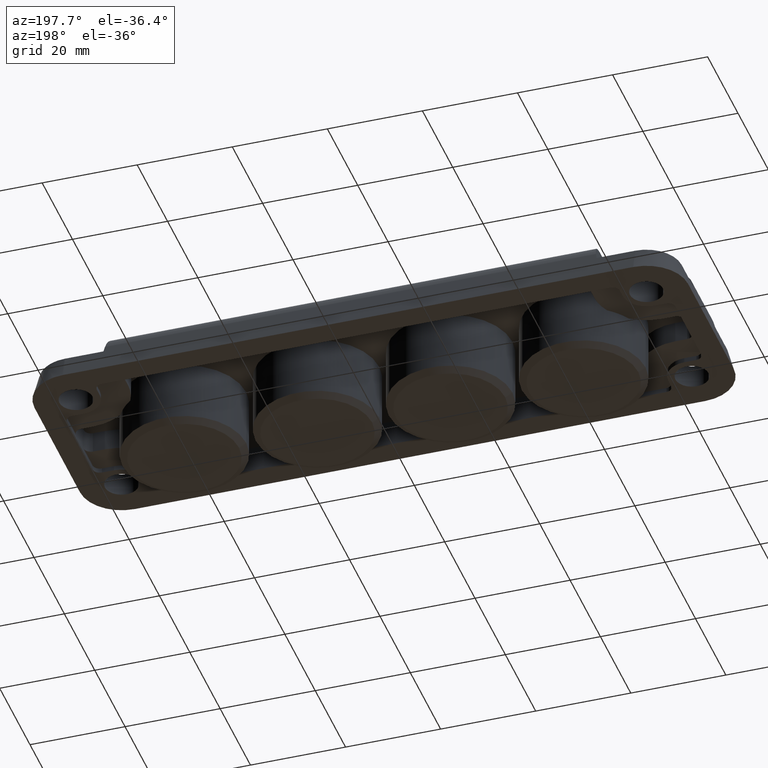
[diagram: clean part render]
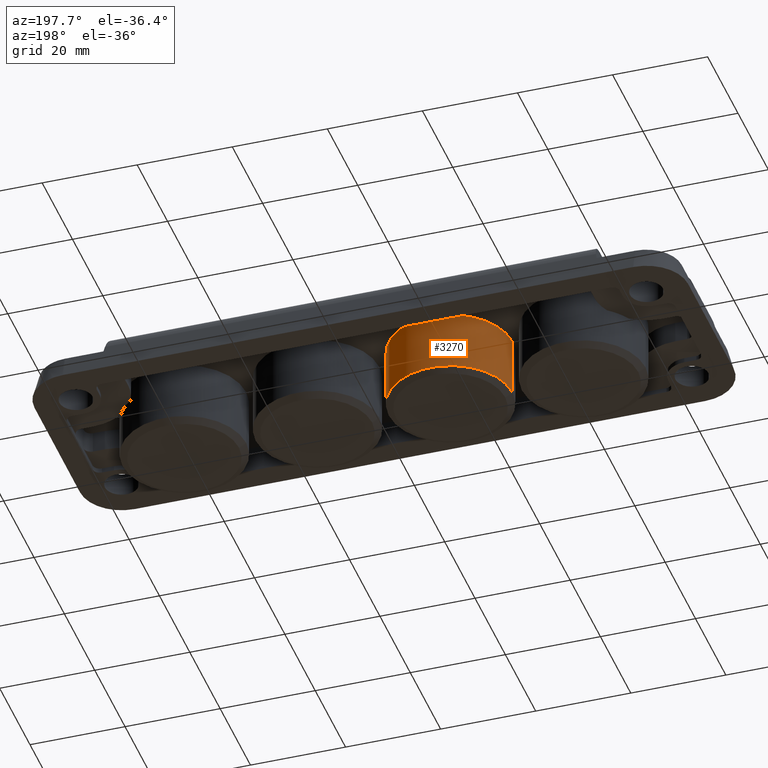
[diagram: same view with one face highlighted and labeled with its STEP entity id]
A machine part, auxiliary view. The second image highlights one B-rep face of the part: STEP entity #3270.
In plain terms, the highlighted cylindrical surface (partial cylindrical patch) has radius 13 mm, axis along (0, 0, 1).
Its self-contained STEP definition (entity closure, byte-faithful):
#128 = EDGE_LOOP ( 'NONE', ( #1354, #2620, #3460, #3894 ) ) ;
#163 = VECTOR ( 'NONE', #3924, 1000.000000000000000 ) ;
#272 = CARTESIAN_POINT ( 'NONE',  ( -0.9999999999999974500, -1.734723475976807100E-015, 5.500000000000000000 ) ) ;
#382 = DIRECTION ( 'NONE',  ( 0.0000000000000000000, 0.0000000000000000000, 1.000000000000000000 ) ) ;
#415 = EDGE_CURVE ( 'NONE', #2922, #1370, #1440, .T. ) ;
#487 = DIRECTION ( 'NONE',  ( 1.000000000000000000, 0.0000000000000000000, 0.0000000000000000000 ) ) ;
#792 = CARTESIAN_POINT ( 'NONE',  ( -13.99999999999999800, -1.734723475976807100E-015, -7.133974596215564300 ) ) ;
#948 = CARTESIAN_POINT ( 'NONE',  ( -27.00000000000000000, -1.426826370852478000E-016, -7.133974596215564300 ) ) ;
#986 = EDGE_CURVE ( 'NONE', #3559, #1370, #2907, .T. ) ;
#1341 = CARTESIAN_POINT ( 'NONE',  ( -27.00000000000000000, -1.426826370852478000E-016, 5.500000000000000000 ) ) ;
#1354 = ORIENTED_EDGE ( 'NONE', *, *, #2332, .T. ) ;
#1370 = VERTEX_POINT ( 'NONE', #1341 ) ;
#1408 = CARTESIAN_POINT ( 'NONE',  ( -27.00000000000000000, -1.426826370852478000E-016, -62.76955262170047700 ) ) ;
#1440 = LINE ( 'NONE', #1408, #163 ) ;
#1476 = DIRECTION ( 'NONE',  ( -0.0000000000000000000, -0.0000000000000000000, 1.000000000000000000 ) ) ;
#1606 = CIRCLE ( 'NONE', #3761, 13.00000000000000200 ) ;
#1769 = DIRECTION ( 'NONE',  ( -1.000000000000000000, 0.0000000000000000000, 0.0000000000000000000 ) ) ;
#1806 = CARTESIAN_POINT ( 'NONE',  ( -0.9999999999999974500, -1.734723475976807100E-015, -7.133974596215564300 ) ) ;
#1814 = DIRECTION ( 'NONE',  ( 1.000000000000000000, 0.0000000000000000000, 0.0000000000000000000 ) ) ;
#1920 = CARTESIAN_POINT ( 'NONE',  ( -0.9999999999999974500, -1.734723475976807100E-015, -62.76955262170047700 ) ) ;
#2183 = VECTOR ( 'NONE', #382, 1000.000000000000000 ) ;
#2332 = EDGE_CURVE ( 'NONE', #4046, #2922, #1606, .T. ) ;
#2338 = CYLINDRICAL_SURFACE ( 'NONE', #3106, 13.00000000000000200 ) ;
#2358 = CARTESIAN_POINT ( 'NONE',  ( -13.99999999999999800, -1.734723475976807100E-015, 5.500000000000000000 ) ) ;
#2431 = LINE ( 'NONE', #1920, #2183 ) ;
#2620 = ORIENTED_EDGE ( 'NONE', *, *, #415, .T. ) ;
#2771 = DIRECTION ( 'NONE',  ( 0.0000000000000000000, 0.0000000000000000000, 1.000000000000000000 ) ) ;
#2907 = CIRCLE ( 'NONE', #3884, 13.00000000000000200 ) ;
#2922 = VERTEX_POINT ( 'NONE', #948 ) ;
#3106 = AXIS2_PLACEMENT_3D ( 'NONE', #3387, #2771, #1814 ) ;
#3270 = ADVANCED_FACE ( 'NONE', ( #3806 ), #2338, .T. ) ;
#3387 = CARTESIAN_POINT ( 'NONE',  ( -13.99999999999999800, -1.734723475976807100E-015, -62.76955262170047700 ) ) ;
#3460 = ORIENTED_EDGE ( 'NONE', *, *, #986, .F. ) ;
#3559 = VERTEX_POINT ( 'NONE', #272 ) ;
#3629 = DIRECTION ( 'NONE',  ( 0.0000000000000000000, 0.0000000000000000000, 1.000000000000000000 ) ) ;
#3667 = EDGE_CURVE ( 'NONE', #4046, #3559, #2431, .T. ) ;
#3761 = AXIS2_PLACEMENT_3D ( 'NONE', #792, #1476, #1769 ) ;
#3806 = FACE_OUTER_BOUND ( 'NONE', #128, .T. ) ;
#3884 = AXIS2_PLACEMENT_3D ( 'NONE', #2358, #3629, #487 ) ;
#3894 = ORIENTED_EDGE ( 'NONE', *, *, #3667, .F. ) ;
#3924 = DIRECTION ( 'NONE',  ( 0.0000000000000000000, 0.0000000000000000000, 1.000000000000000000 ) ) ;
#4046 = VERTEX_POINT ( 'NONE', #1806 ) ;